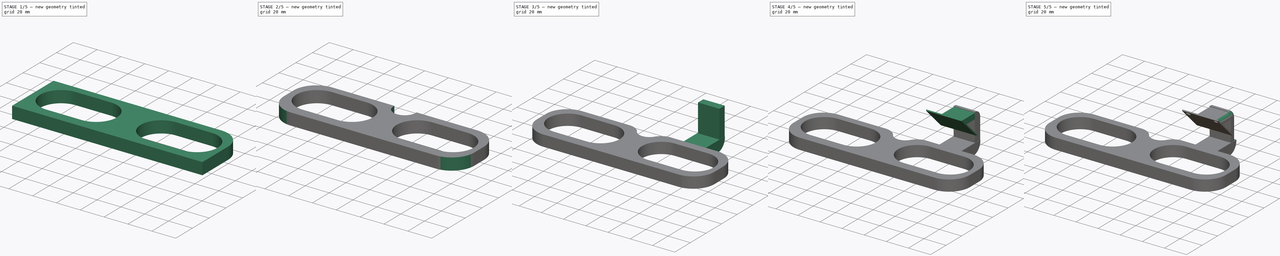
[diagram: build sequence overview — one tinted view per stage of 5, left to right]
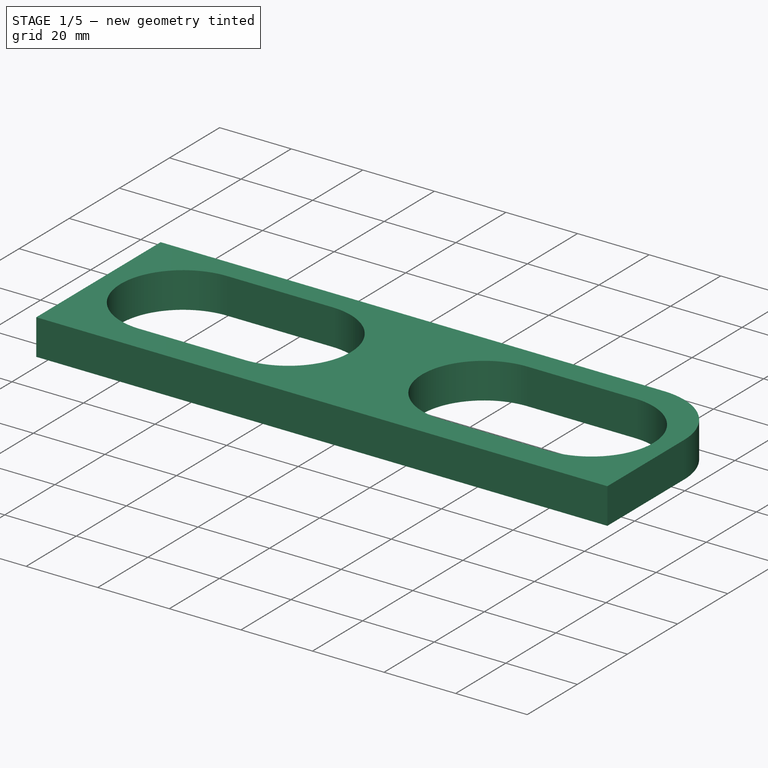
[diagram: stage 1 of 5 — iso view after this stage's code; geometry added in this stage tinted green]
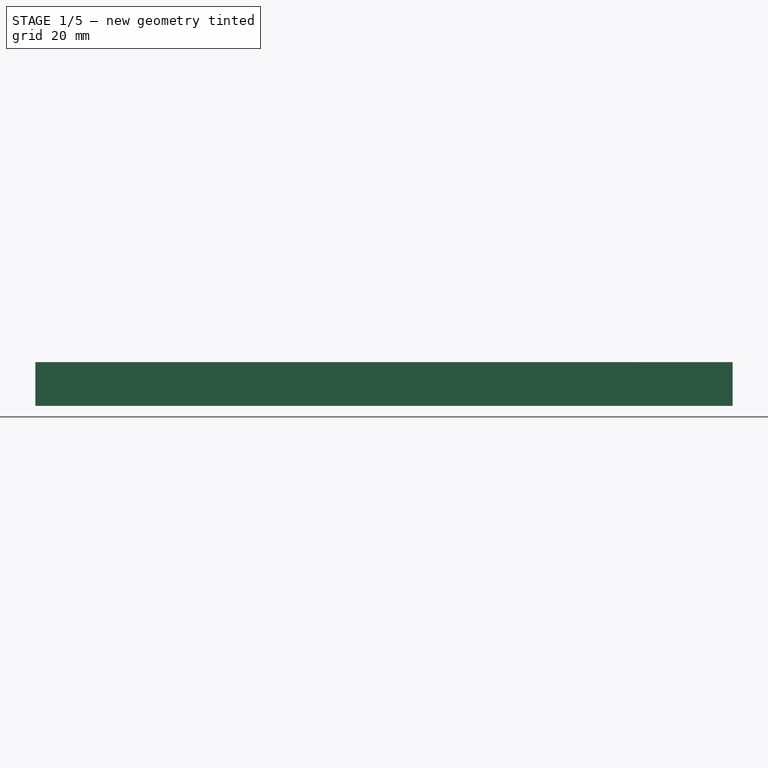
[diagram: stage 1 of 5 — front view after this stage's code; geometry added in this stage tinted green]
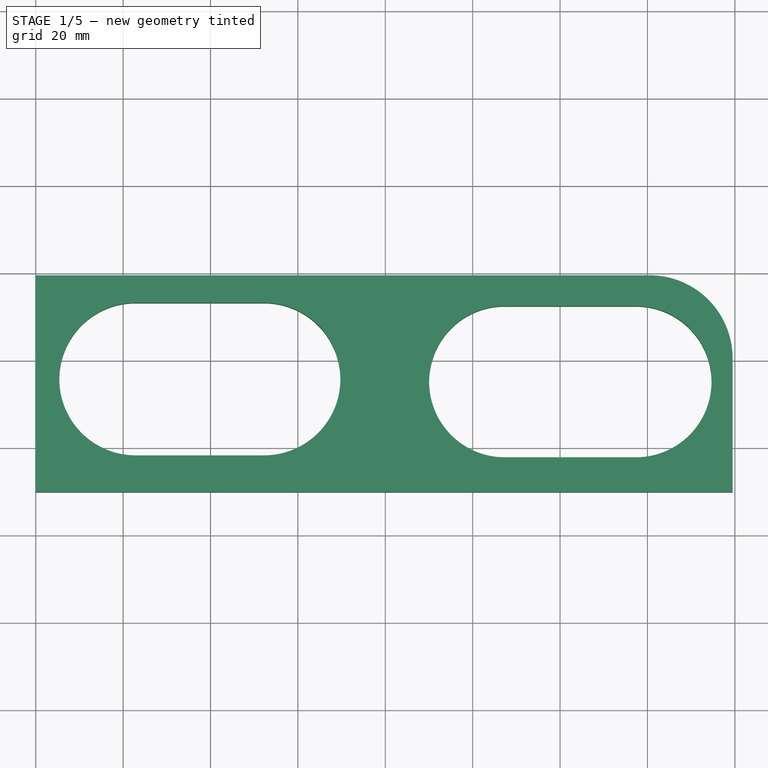
[diagram: stage 1 of 5 — top view after this stage's code; geometry added in this stage tinted green]
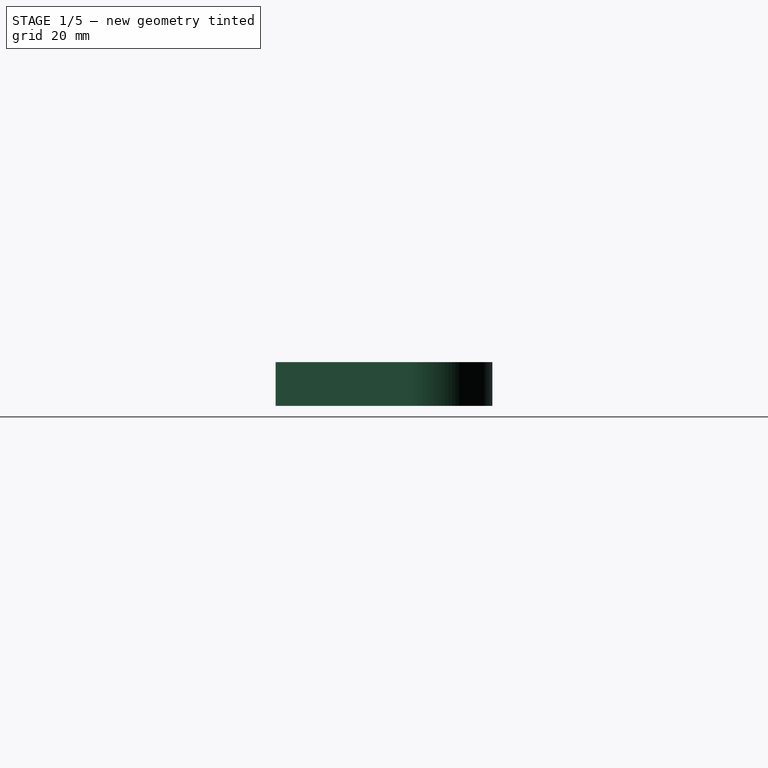
[diagram: stage 1 of 5 — right view after this stage's code; geometry added in this stage tinted green]
FCSTD DOCUMENT  (FreeCAD 0.16R6712 (Git))
Label: lunettes3D
License: All rights reserved
LicenseURL: http://en.wikipedia.org/wiki/All_rights_reserved
objects: Sketcher::SketchObject×14, PartDesign::Fillet×10, PartDesign::Pad×5, PartDesign::Pocket×5, PartDesign::Chamfer×1
note: 45 computed .brp shape members not serialized (recipe doc carries the construction recipe); baked Part::Feature solids carry a one-line shape summary decoded from their .brp

FEATURE [Sketcher::SketchObject] Sketch
  sketch-geometry (4):
    g0: LineSegment StartX=-80.08 StartY=19.4629 StartZ=0 EndX=79.4857 EndY=19.4629 EndZ=0
    g1: LineSegment StartX=79.4857 StartY=19.4629 StartZ=0 EndX=79.4857 EndY=-30.16 EndZ=0
    g2: LineSegment StartX=79.4857 StartY=-30.16 StartZ=0 EndX=-80.08 EndY=-30.16 EndZ=0
    g3: LineSegment StartX=-80.08 StartY=-30.16 StartZ=0 EndX=-80.08 EndY=19.4629 EndZ=0
  constraints (8):
    c: Coincident(g0,g1)
    c: Coincident(g1,g2)
    c: Coincident(g2,g3)
    c: Coincident(g3,g0)
    c: Horizontal(g0)
    c: Horizontal(g2)
    c: Vertical(g1)
    c: Vertical(g3)
FEATURE [PartDesign::Pad] Pad
  Length = 10
  Length2 = 100
  Sketch = -> Sketch
  Type = 0
FEATURE [Sketcher::SketchObject] Sketch001
  Placement = pos=(0,0,10) rot=(0,0,1;0rad)
  Support = -> Pad [Face6]
  sketch-geometry (4):
    g0: ArcOfCircle CenterX=-57.1503 CenterY=-4.30764 CenterZ=0 NormalX=0 NormalY=0 NormalZ=1 Radius=17.4571 StartAngle=1.5708 EndAngle=4.71239
    g1: ArcOfCircle CenterX=-27.7332 CenterY=-4.30764 CenterZ=0 NormalX=0 NormalY=0 NormalZ=1 Radius=17.4571 StartAngle=4.71239 EndAngle=7.85398
    g2: LineSegment StartX=-57.1503 StartY=-21.7648 StartZ=0 EndX=-27.7332 EndY=-21.7648 EndZ=0
    g3: LineSegment StartX=-57.1503 StartY=13.1495 StartZ=0 EndX=-27.7332 EndY=13.1495 EndZ=0
  constraints (6):
    c: Tangent(g0,g3) = 1.5708
    c: Tangent(g0,g2) = -1.5708
    c: Tangent(g2,g1) = -1.5708
    c: Tangent(g3,g1) = 1.5708
    c: Horizontal(g2)
    c: Equal(g0,g1)
FEATURE [PartDesign::Pocket] Pocket
  Length = 10
  Sketch = -> Sketch001
  Type = 0
FEATURE [Sketcher::SketchObject] Sketch002
FEATURE [Sketcher::SketchObject] Sketch003
FEATURE [Sketcher::SketchObject] Sketch004
  Placement = pos=(0,0,10) rot=(0,0,1;0rad)
  Support = -> Pocket [Face5]
  sketch-geometry (4):
    g0: ArcOfCircle CenterX=27.3371 CenterY=-4.90286 CenterZ=0 NormalX=0 NormalY=0 NormalZ=1 Radius=17.3086 StartAngle=1.5708 EndAngle=4.71239
    g1: ArcOfCircle CenterX=57.3486 CenterY=-4.90286 CenterZ=0 NormalX=0 NormalY=0 NormalZ=1 Radius=17.3086 StartAngle=4.71239 EndAngle=7.85398
    g2: LineSegment StartX=27.3371 StartY=-22.2114 StartZ=0 EndX=57.3486 EndY=-22.2114 EndZ=0
    g3: LineSegment StartX=27.3371 StartY=12.4057 StartZ=0 EndX=57.3486 EndY=12.4057 EndZ=0
  constraints (6):
    c: Tangent(g0,g3) = 1.5708
    c: Tangent(g0,g2) = -1.5708
    c: Tangent(g2,g1) = -1.5708
    c: Tangent(g3,g1) = 1.5708
    c: Horizontal(g2)
    c: Equal(g0,g1)
FEATURE [Sketcher::SketchObject] Sketch005
FEATURE [PartDesign::Pocket] Pocket001
  Length = 10
  Sketch = -> Sketch004
  Type = 0
FEATURE [PartDesign::Fillet] Fillet
  Base = -> Pocket001 [Edge2]
  Radius = 19
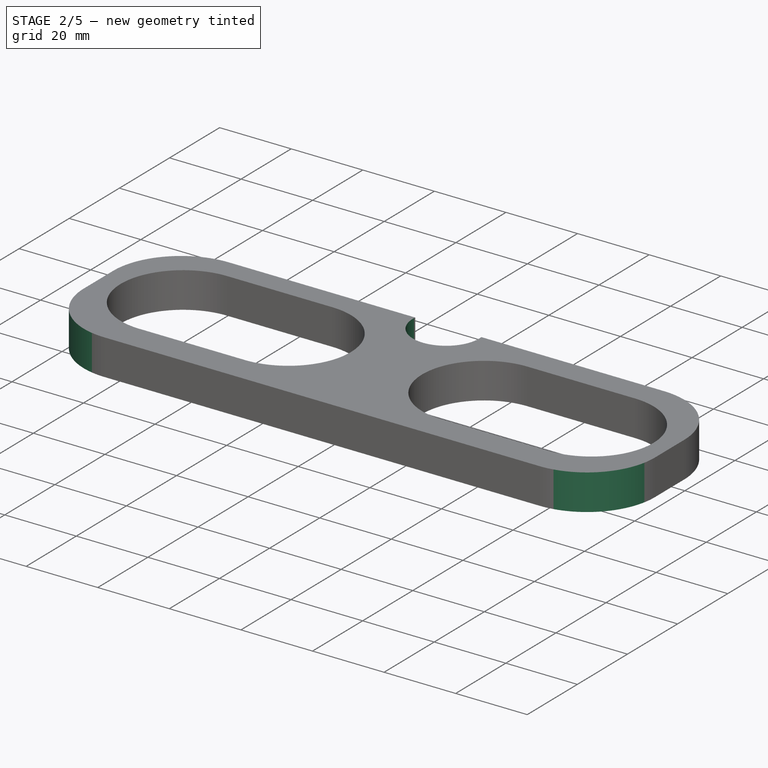
[diagram: stage 2 of 5 — iso view after this stage's code; geometry added in this stage tinted green]
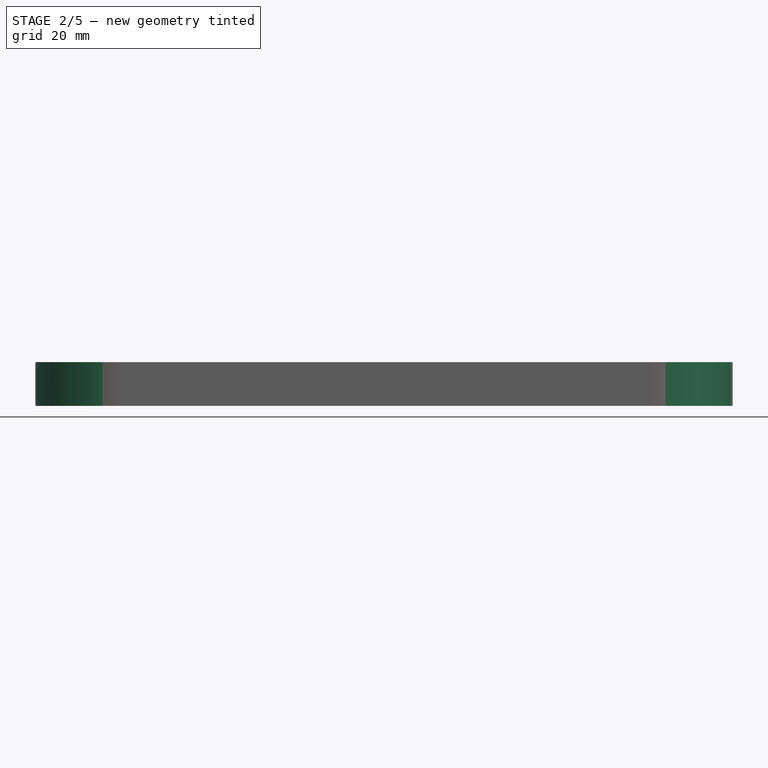
[diagram: stage 2 of 5 — front view after this stage's code; geometry added in this stage tinted green]
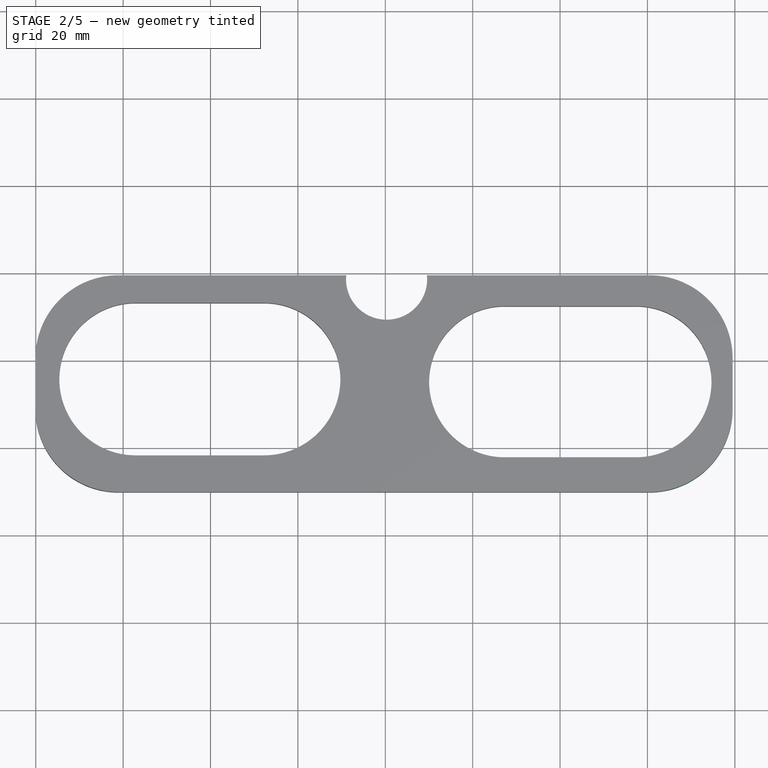
[diagram: stage 2 of 5 — top view after this stage's code; geometry added in this stage tinted green]
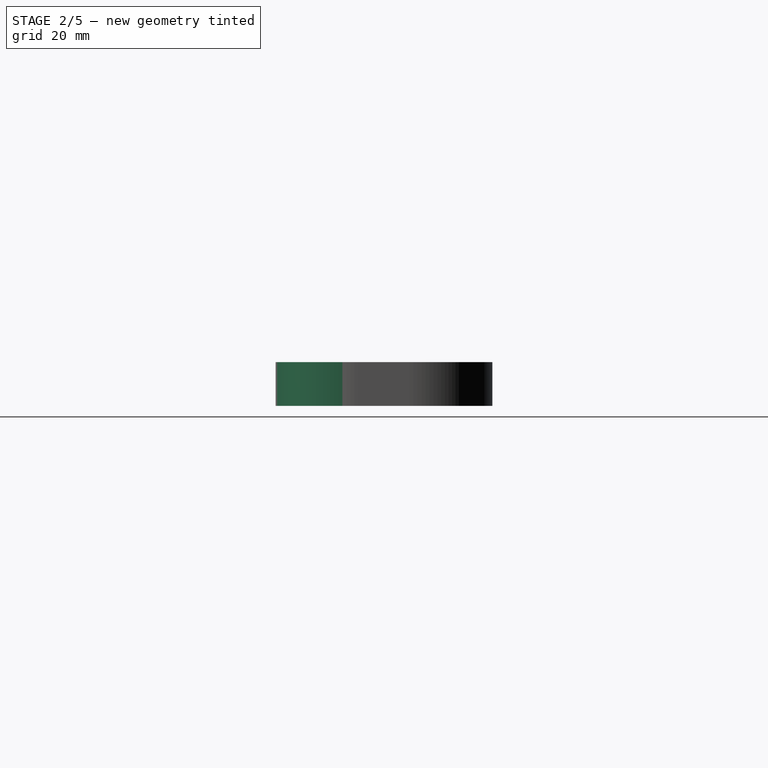
[diagram: stage 2 of 5 — right view after this stage's code; geometry added in this stage tinted green]
FEATURE [PartDesign::Fillet] Fillet001
  Base = -> Fillet [Edge3]
  Radius = 19
FEATURE [PartDesign::Fillet] Fillet002
  Base = -> Fillet001 [Edge33]
  Radius = 19
FEATURE [PartDesign::Fillet] Fillet003
  Base = -> Fillet002 [Edge23]
  Radius = 19
FEATURE [Sketcher::SketchObject] Sketch006
  Placement = pos=(0,0,10) rot=(0,0,1;0rad)
  Support = -> Fillet003 [Face18]
  sketch-geometry (1):
    g0: Circle CenterX=0.297139 CenterY=18.5714 CenterZ=0 NormalX=0 NormalY=0 NormalZ=1 Radius=9.28779
FEATURE [PartDesign::Pocket] Pocket002
  Length = 11
  Sketch = -> Sketch006
  Type = 0
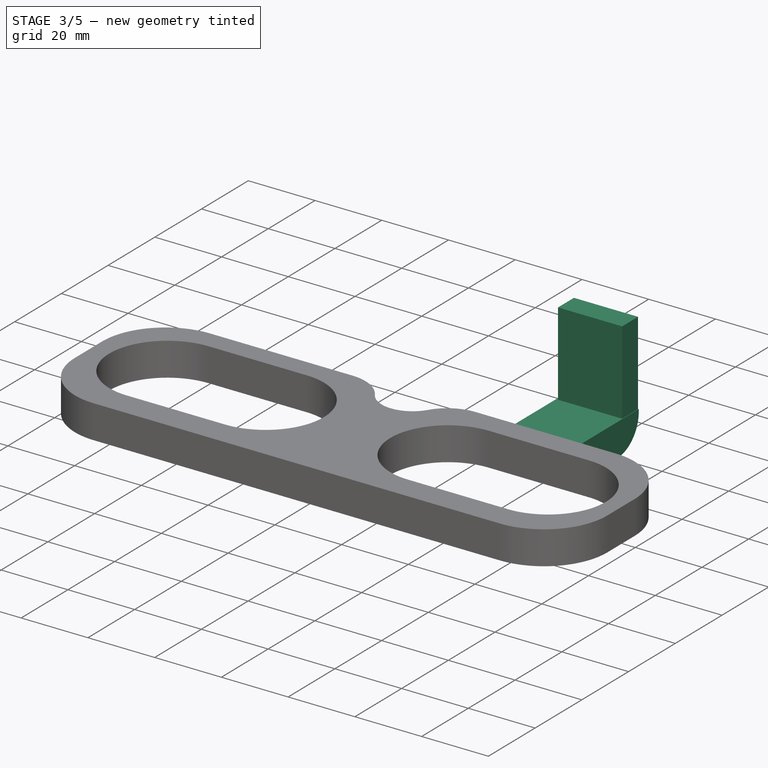
[diagram: stage 3 of 5 — iso view after this stage's code; geometry added in this stage tinted green]
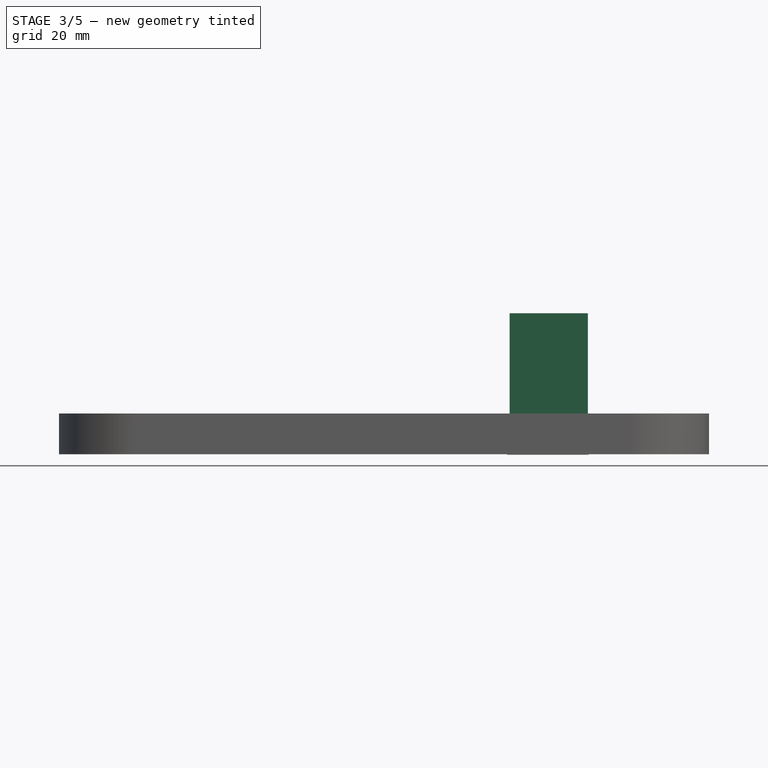
[diagram: stage 3 of 5 — front view after this stage's code; geometry added in this stage tinted green]
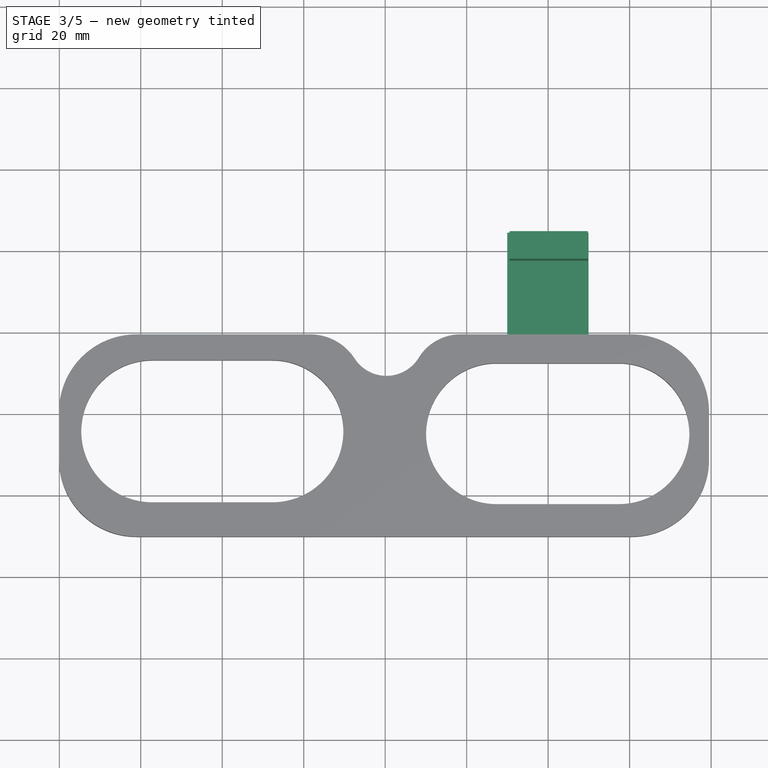
[diagram: stage 3 of 5 — top view after this stage's code; geometry added in this stage tinted green]
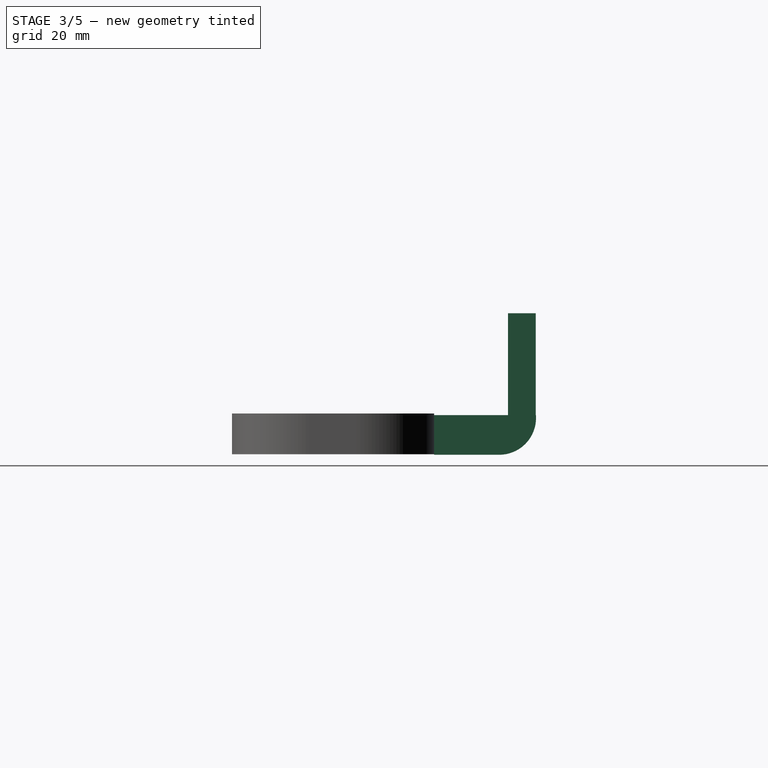
[diagram: stage 3 of 5 — right view after this stage's code; geometry added in this stage tinted green]
FEATURE [PartDesign::Fillet] Fillet004
  Base = -> Pocket002 [Edge29]
  Radius = 13
FEATURE [PartDesign::Fillet] Fillet005
  Base = -> Fillet004 [Edge33]
  Radius = 12
FEATURE [Sketcher::SketchObject] Sketch007
  Placement = pos=(0,19.4629,0) rot=(0,0.707107,0.707107;3.14159rad)
  Support = -> Fillet005 [Face5]
  sketch-geometry (4):
    g0: LineSegment StartX=-49.9164 StartY=9.62098 StartZ=0 EndX=-29.9674 EndY=9.62098 EndZ=0
    g1: LineSegment StartX=-29.9674 StartY=9.62098 StartZ=0 EndX=-29.9674 EndY=-0.110228 EndZ=0
    g2: LineSegment StartX=-29.9674 StartY=-0.110228 StartZ=0 EndX=-49.9164 EndY=-0.110228 EndZ=0
    g3: LineSegment StartX=-49.9164 StartY=-0.110228 StartZ=0 EndX=-49.9164 EndY=9.62098 EndZ=0
  constraints (8):
    c: Coincident(g0,g1)
    c: Coincident(g1,g2)
    c: Coincident(g2,g3)
    c: Coincident(g3,g0)
    c: Horizontal(g0)
    c: Horizontal(g2)
    c: Vertical(g1)
    c: Vertical(g3)
FEATURE [PartDesign::Pad] Pad001
  Length = 25
  Length2 = 100
  Sketch = -> Sketch007
  Type = 0
FEATURE [PartDesign::Fillet] Fillet006
  Base = -> Pad001 [Edge3]
  Radius = 9
FEATURE [Sketcher::SketchObject] Sketch008
  Placement = pos=(0,0,9.62098) rot=(0,0,1;0rad)
  Support = -> Fillet006 [Face4]
  sketch-geometry (4):
    g0: LineSegment StartX=30.5357 StartY=44.3953 StartZ=0 EndX=49.7548 EndY=44.3953 EndZ=0
    g1: LineSegment StartX=49.7548 StartY=44.3953 StartZ=0 EndX=49.7548 EndY=37.5835 EndZ=0
    g2: LineSegment StartX=49.7548 StartY=37.5835 StartZ=0 EndX=30.5357 EndY=37.5835 EndZ=0
    g3: LineSegment StartX=30.5357 StartY=37.5835 StartZ=0 EndX=30.5357 EndY=44.3953 EndZ=0
  constraints (8):
    c: Coincident(g0,g1)
    c: Coincident(g1,g2)
    c: Coincident(g2,g3)
    c: Coincident(g3,g0)
    c: Horizontal(g0)
    c: Horizontal(g2)
    c: Vertical(g1)
    c: Vertical(g3)
FEATURE [PartDesign::Pad] Pad002
  Length = 25
  Length2 = 100
  Sketch = -> Sketch008
  Type = 0
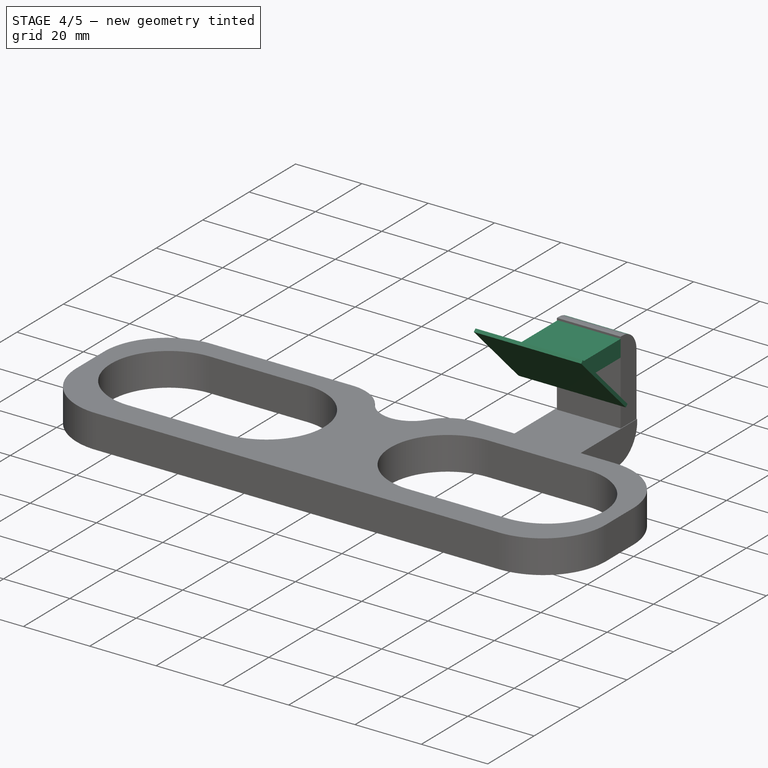
[diagram: stage 4 of 5 — iso view after this stage's code; geometry added in this stage tinted green]
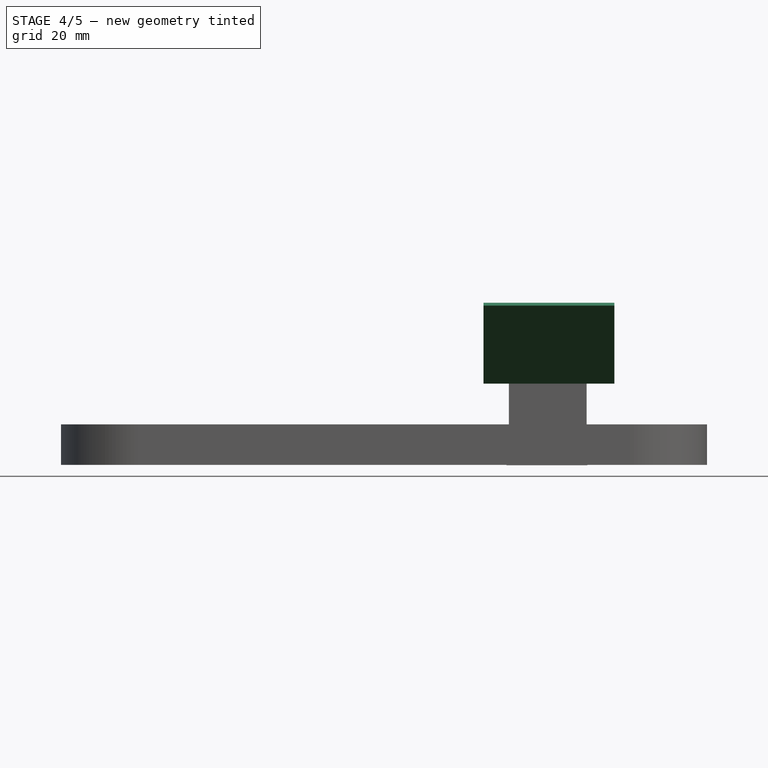
[diagram: stage 4 of 5 — front view after this stage's code; geometry added in this stage tinted green]
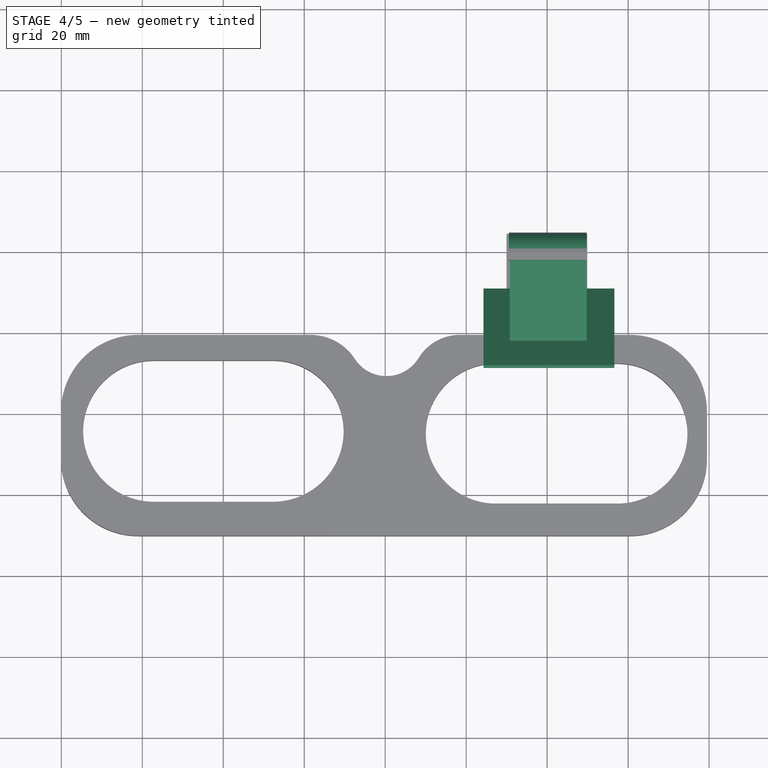
[diagram: stage 4 of 5 — top view after this stage's code; geometry added in this stage tinted green]
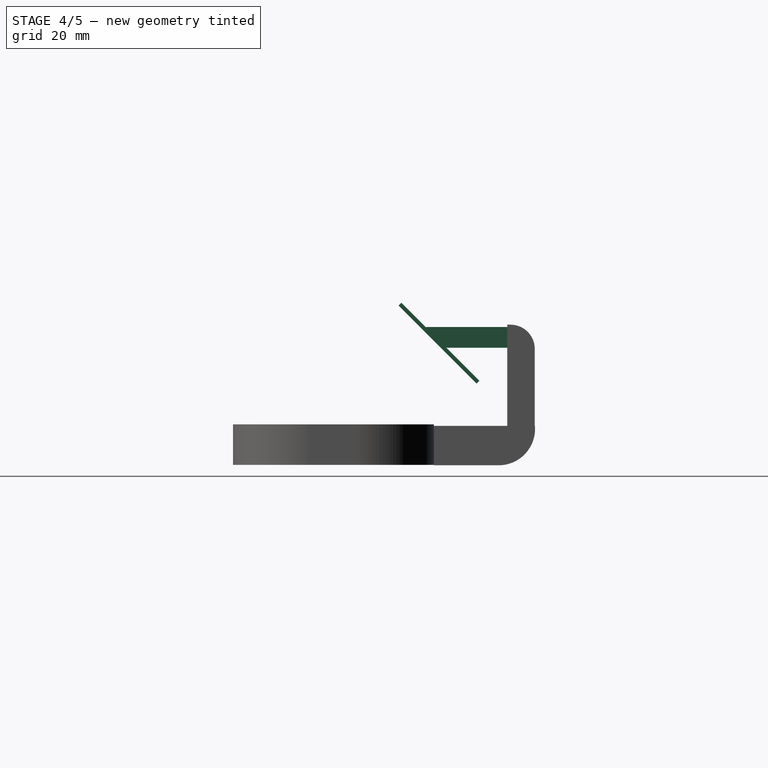
[diagram: stage 4 of 5 — right view after this stage's code; geometry added in this stage tinted green]
FEATURE [PartDesign::Fillet] Fillet007
  Base = -> Pad002 [Edge1]
  Radius = 6
FEATURE [Sketcher::SketchObject] Sketch009
  Placement = pos=(0,37.5835,0) rot=(1,0,0;1.5708rad)
  Support = -> Fillet007 [Face4]
  sketch-geometry (4):
    g0: LineSegment StartX=30.7632 StartY=30.3032 StartZ=0 EndX=48.1545 EndY=30.3032 EndZ=0
    g1: LineSegment StartX=48.1545 StartY=30.3032 StartZ=0 EndX=48.1545 EndY=28.9262 EndZ=0
    g2: LineSegment StartX=48.1545 StartY=28.9262 StartZ=0 EndX=30.7632 EndY=28.9262 EndZ=0
    g3: LineSegment StartX=30.7632 StartY=28.9262 StartZ=0 EndX=30.7632 EndY=30.3032 EndZ=0
  constraints (8):
    c: Coincident(g0,g1)
    c: Coincident(g1,g2)
    c: Coincident(g2,g3)
    c: Coincident(g3,g0)
    c: Horizontal(g0)
    c: Horizontal(g2)
    c: Vertical(g1)
    c: Vertical(g3)
FEATURE [PartDesign::Pad] Pad003
  Length = 20
  Length2 = 100
  Sketch = -> Sketch009
  Type = 0
FEATURE [PartDesign::Chamfer] Chamfer
  Base = -> Pad003 [Edge3]
  Size = 6
FEATURE [Sketcher::SketchObject] Sketch010
  Placement = pos=(0,25.7548,25.7548) rot=(1,0,0;2.35619rad)
  Support = -> Chamfer [Face3]
  sketch-geometry (4):
    g0: LineSegment StartX=24.2673 StartY=20.2148 StartZ=0 EndX=56.6236 EndY=20.2148 EndZ=0
    g1: LineSegment StartX=56.6236 StartY=20.2148 StartZ=0 EndX=56.6236 EndY=-7.03263 EndZ=0
    g2: LineSegment StartX=56.6236 StartY=-7.03263 StartZ=0 EndX=24.2673 EndY=-7.03263 EndZ=0
    g3: LineSegment StartX=24.2673 StartY=-7.03263 StartZ=0 EndX=24.2673 EndY=20.2148 EndZ=0
  constraints (8):
    c: Coincident(g0,g1)
    c: Coincident(g1,g2)
    c: Coincident(g2,g3)
    c: Coincident(g3,g0)
    c: Horizontal(g0)
    c: Horizontal(g2)
    c: Vertical(g1)
    c: Vertical(g3)
FEATURE [PartDesign::Pad] Pad004
  Length = 1
  Length2 = 100
  Sketch = -> Sketch010
  Type = 0
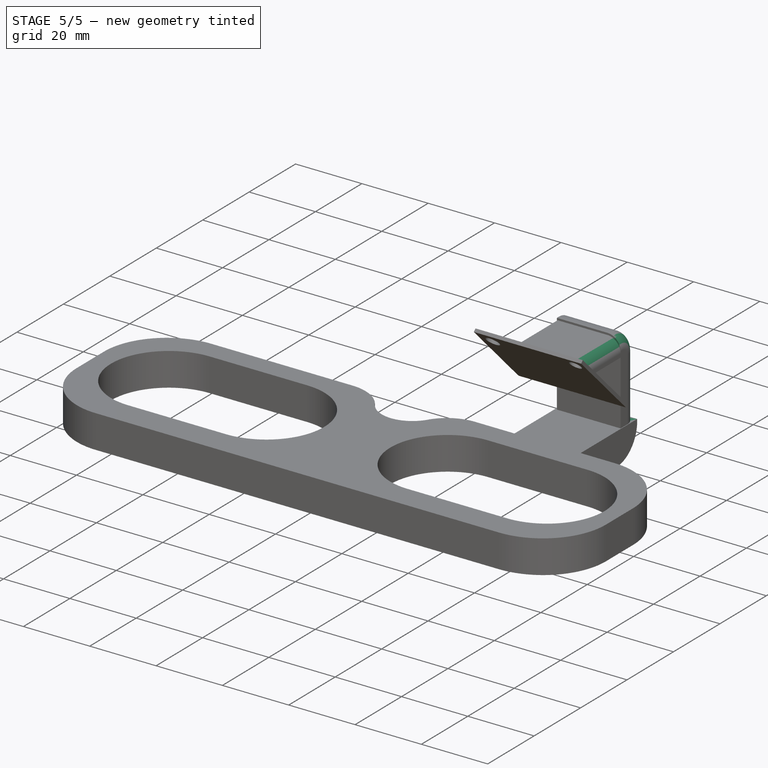
[diagram: stage 5 of 5 — iso view after this stage's code; geometry added in this stage tinted green]
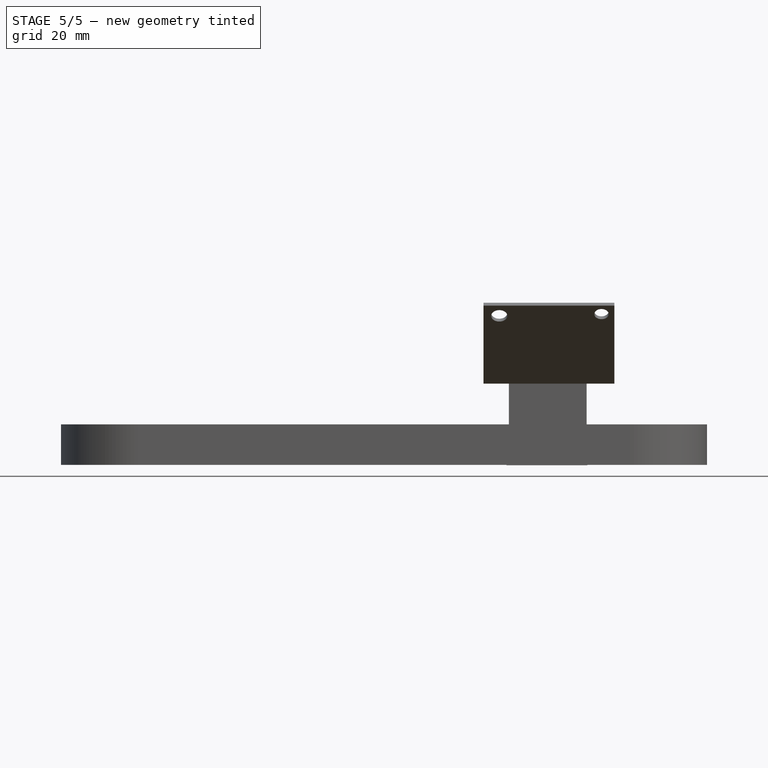
[diagram: stage 5 of 5 — front view after this stage's code; geometry added in this stage tinted green]
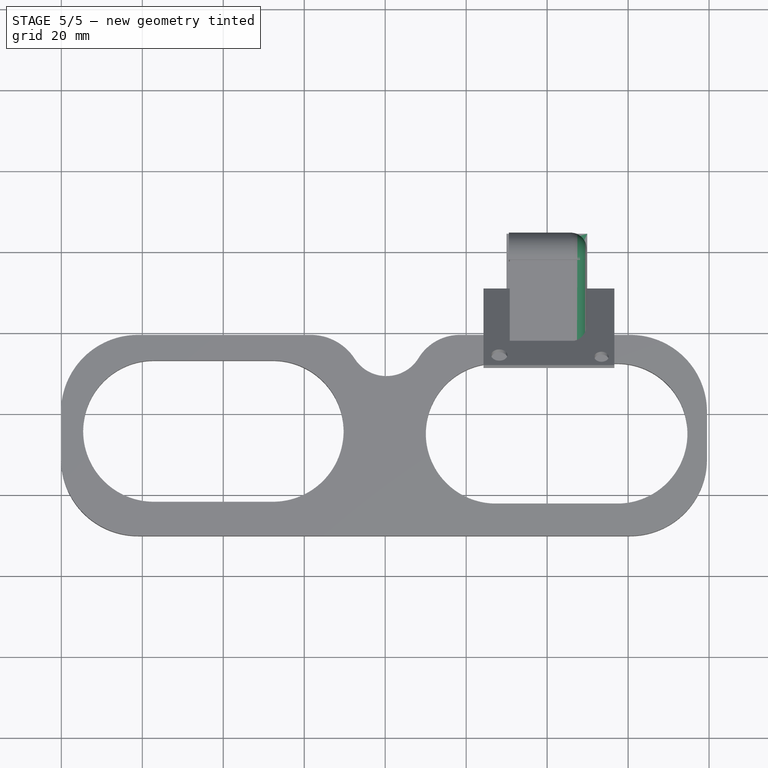
[diagram: stage 5 of 5 — top view after this stage's code; geometry added in this stage tinted green]
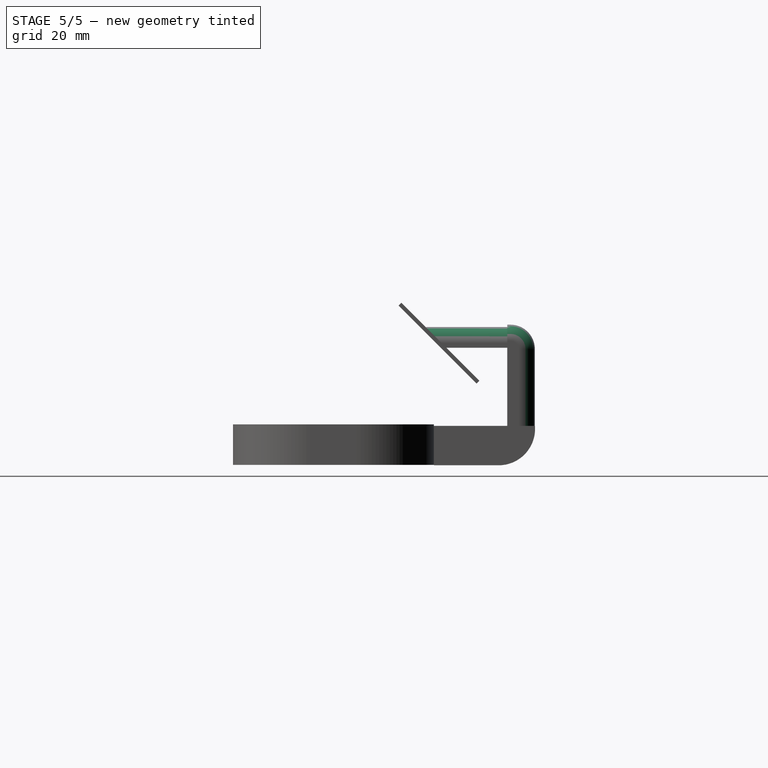
[diagram: stage 5 of 5 — right view after this stage's code; geometry added in this stage tinted green]
FEATURE [PartDesign::Fillet] Fillet008
  Base = -> Pad004 [Edge25]
  Radius = 4
FEATURE [PartDesign::Fillet] Fillet009
  Base = -> Fillet008 [Edge35]
  Radius = 4
FEATURE [Sketcher::SketchObject] Sketch011
  Placement = pos=(0,25.0477,25.0477) rot=(1,0,0;2.35619rad)
  Support = -> Fillet009 [Face50]
  sketch-geometry (1):
    g0: Circle CenterX=28.1795 CenterY=16.6255 CenterZ=0 NormalX=0 NormalY=0 NormalZ=1 Radius=1.99527
FEATURE [PartDesign::Pocket] Pocket003
  Length = 5
  Sketch = -> Sketch011
  Type = 0
FEATURE [Sketcher::SketchObject] Sketch012
  Placement = pos=(0,25.0477,25.0477) rot=(1,0,0;2.35619rad)
  Support = -> Pocket003 [Face51]
  sketch-geometry (1):
    g0: Circle CenterX=53.4286 CenterY=17.2342 CenterZ=0 NormalX=0 NormalY=0 NormalZ=1 Radius=1.77355
FEATURE [PartDesign::Pocket] Pocket004
  Length = 5
  Sketch = -> Sketch012
  Type = 0
FEATURE [Sketcher::SketchObject] Sketch013
  Placement = pos=(0,25.0477,25.0477) rot=(1,0,0;2.35619rad)
  Support = -> Pocket004 [Face52]
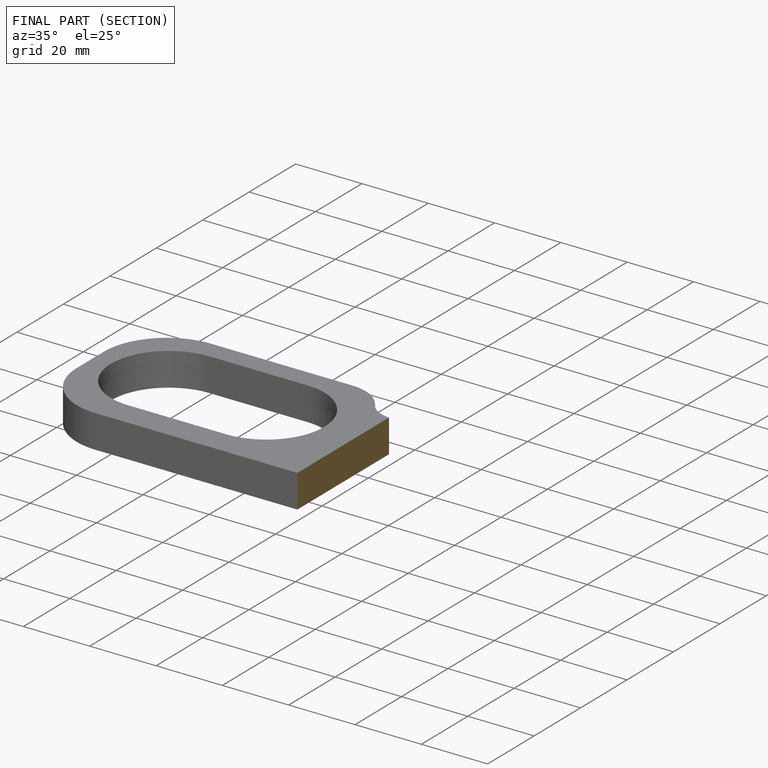
[diagram: finished part — half-section view (interior)]
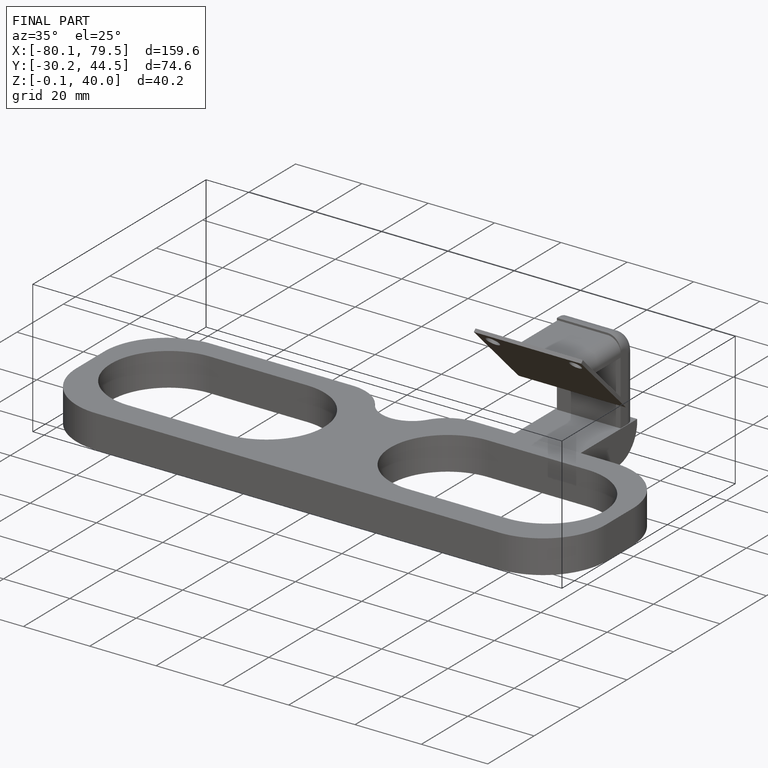
[diagram: finished part — iso view with bounding-box wireframe]
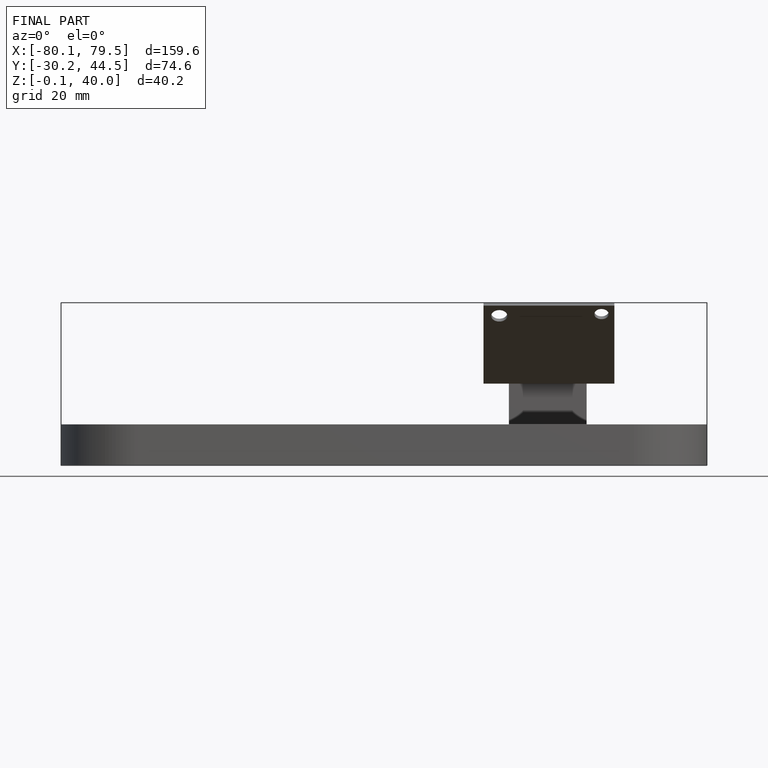
[diagram: finished part — front view with bounding-box wireframe]
